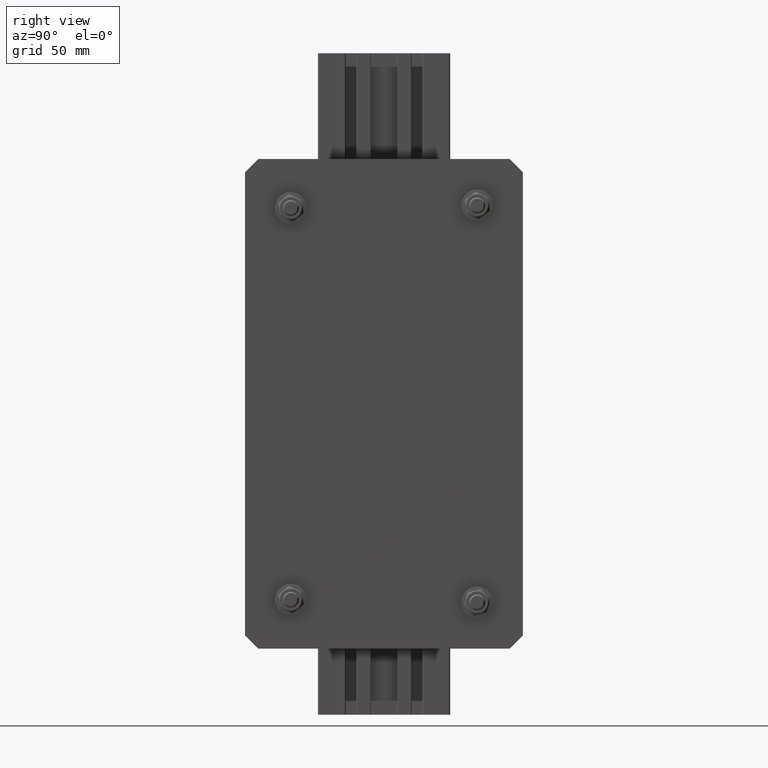
[diagram: clean part render]
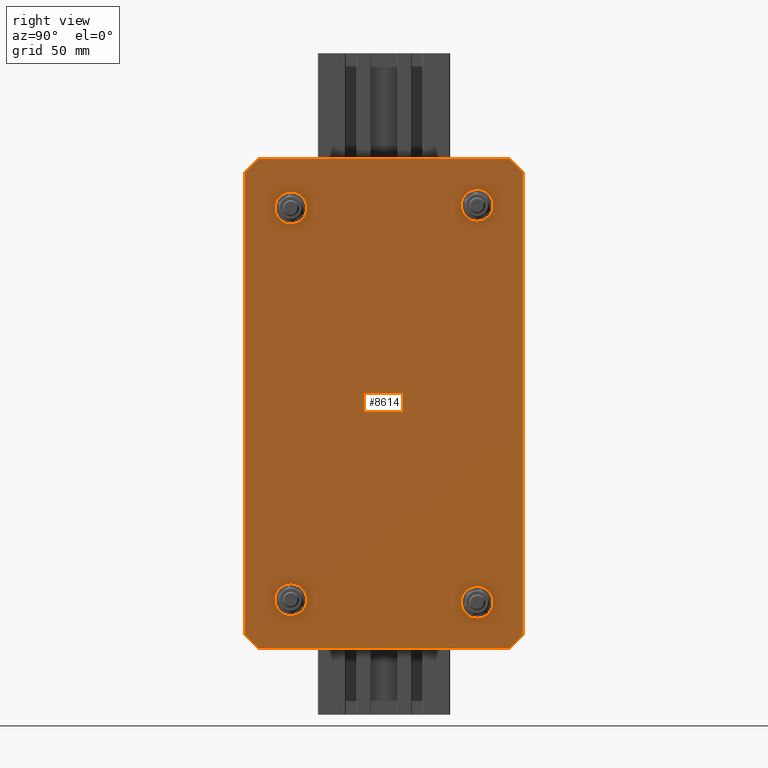
[diagram: same view with one face highlighted and labeled with its STEP entity id]
A machine part, right view. The second image highlights one B-rep face of the part: STEP entity #8614.
In plain terms, the highlighted planar face has unit normal (1, -0, -0).
Its self-contained STEP definition (entity closure, byte-faithful):
#580=FACE_BOUND('',#1534,.T.);
#581=FACE_BOUND('',#1535,.T.);
#582=FACE_BOUND('',#1536,.T.);
#583=FACE_BOUND('',#1537,.T.);
#1030=FACE_OUTER_BOUND('',#1533,.T.);
#1533=EDGE_LOOP('',(#7859,#7860,#7861,#7862,#7863,#7864,#7865,#7866));
#1534=EDGE_LOOP('',(#7867));
#1535=EDGE_LOOP('',(#7868));
#1536=EDGE_LOOP('',(#7869));
#1537=EDGE_LOOP('',(#7870));
#1958=CIRCLE('',#9799,10.);
#1959=CIRCLE('',#9801,10.);
#1960=CIRCLE('',#9803,10.);
#1961=CIRCLE('',#9805,10.);
#2557=LINE('',#16324,#3180);
#2563=LINE('',#16335,#3186);
#2570=LINE('',#16358,#3193);
#2573=LINE('',#16363,#3196);
#2574=LINE('',#16367,#3197);
#2577=LINE('',#16371,#3200);
#2578=LINE('',#16374,#3201);
#2584=LINE('',#16393,#3207);
#3180=VECTOR('',#12187,10.);
#3186=VECTOR('',#12195,10.);
#3193=VECTOR('',#12214,10.);
#3196=VECTOR('',#12219,10.);
#3197=VECTOR('',#12222,10.);
#3200=VECTOR('',#12227,10.);
#3201=VECTOR('',#12230,10.);
#3207=VECTOR('',#12254,10.);
#4037=VERTEX_POINT('',#16322);
#4038=VERTEX_POINT('',#16323);
#4042=VERTEX_POINT('',#16333);
#4052=VERTEX_POINT('',#16357);
#4053=VERTEX_POINT('',#16361);
#4054=VERTEX_POINT('',#16365);
#4055=VERTEX_POINT('',#16366);
#4056=VERTEX_POINT('',#16373);
#4057=VERTEX_POINT('',#16377);
#4058=VERTEX_POINT('',#16381);
#4059=VERTEX_POINT('',#16385);
#4060=VERTEX_POINT('',#16389);
#5295=EDGE_CURVE('',#4037,#4038,#2557,.T.);
#5301=EDGE_CURVE('',#4037,#4042,#2563,.T.);
#5312=EDGE_CURVE('',#4052,#4042,#2570,.T.);
#5315=EDGE_CURVE('',#4052,#4053,#2573,.T.);
#5316=EDGE_CURVE('',#4054,#4055,#2574,.T.);
#5319=EDGE_CURVE('',#4054,#4038,#2577,.T.);
#5320=EDGE_CURVE('',#4056,#4053,#2578,.T.);
#5322=EDGE_CURVE('',#4057,#4057,#1958,.T.);
#5324=EDGE_CURVE('',#4058,#4058,#1959,.T.);
#5326=EDGE_CURVE('',#4059,#4059,#1960,.T.);
#5328=EDGE_CURVE('',#4060,#4060,#1961,.T.);
#5330=EDGE_CURVE('',#4056,#4055,#2584,.T.);
#7859=ORIENTED_EDGE('',*,*,#5295,.F.);
#7860=ORIENTED_EDGE('',*,*,#5301,.T.);
#7861=ORIENTED_EDGE('',*,*,#5312,.F.);
#7862=ORIENTED_EDGE('',*,*,#5315,.T.);
#7863=ORIENTED_EDGE('',*,*,#5320,.F.);
#7864=ORIENTED_EDGE('',*,*,#5330,.T.);
#7865=ORIENTED_EDGE('',*,*,#5316,.F.);
#7866=ORIENTED_EDGE('',*,*,#5319,.T.);
#7867=ORIENTED_EDGE('',*,*,#5322,.T.);
#7868=ORIENTED_EDGE('',*,*,#5324,.T.);
#7869=ORIENTED_EDGE('',*,*,#5326,.T.);
#7870=ORIENTED_EDGE('',*,*,#5328,.T.);
#8167=PLANE('',#9807);
#8614=ADVANCED_FACE('',(#1030,#580,#581,#582,#583),#8167,.T.);
#9799=AXIS2_PLACEMENT_3D('',#16378,#12234,#12235);
#9801=AXIS2_PLACEMENT_3D('',#16382,#12239,#12240);
#9803=AXIS2_PLACEMENT_3D('',#16386,#12244,#12245);
#9805=AXIS2_PLACEMENT_3D('',#16390,#12249,#12250);
#9807=AXIS2_PLACEMENT_3D('',#16394,#12255,#12256);
#12187=DIRECTION('',(0.707106781186548,0.707106781186548,0.));
#12195=DIRECTION('',(0.,-1.,0.));
#12214=DIRECTION('',(-0.707106781186548,0.707106781186548,0.));
#12219=DIRECTION('',(1.,0.,0.));
#12222=DIRECTION('',(0.707106781186548,-0.707106781186548,0.));
#12227=DIRECTION('',(-1.,0.,0.));
#12230=DIRECTION('',(-0.707106781186548,-0.707106781186548,0.));
#12234=DIRECTION('center_axis',(0.,0.,-1.));
#12235=DIRECTION('ref_axis',(1.,0.,0.));
#12239=DIRECTION('center_axis',(0.,0.,-1.));
#12240=DIRECTION('ref_axis',(1.,0.,0.));
#12244=DIRECTION('center_axis',(0.,0.,-1.));
#12245=DIRECTION('ref_axis',(1.,0.,0.));
#12249=DIRECTION('center_axis',(0.,0.,-1.));
#12250=DIRECTION('ref_axis',(1.,0.,0.));
#12254=DIRECTION('',(0.,1.,0.));
#12255=DIRECTION('center_axis',(0.,0.,1.));
#12256=DIRECTION('ref_axis',(1.,0.,0.));
#16322=CARTESIAN_POINT('',(-105.,175.,15.));
#16323=CARTESIAN_POINT('',(-95.,185.,15.));
#16324=CARTESIAN_POINT('',(-120.,160.,15.));
#16333=CARTESIAN_POINT('',(-105.,-175.,15.));
#16335=CARTESIAN_POINT('',(-105.,-185.,15.));
#16357=CARTESIAN_POINT('',(-95.,-185.,15.));
#16358=CARTESIAN_POINT('',(-120.,-160.,15.));
#16361=CARTESIAN_POINT('',(95.,-185.,15.));
#16363=CARTESIAN_POINT('',(105.,-185.,15.));
#16365=CARTESIAN_POINT('',(95.,185.,15.));
#16366=CARTESIAN_POINT('',(105.,175.,15.));
#16367=CARTESIAN_POINT('',(120.,160.,15.));
#16371=CARTESIAN_POINT('',(-105.,185.,15.));
#16373=CARTESIAN_POINT('',(105.,-175.,15.));
#16374=CARTESIAN_POINT('',(120.,-160.,15.));
#16377=CARTESIAN_POINT('',(-80.4,-150.,15.));
#16378=CARTESIAN_POINT('Origin',(-70.4,-150.,15.));
#16381=CARTESIAN_POINT('',(-80.4,150.,15.));
#16382=CARTESIAN_POINT('Origin',(-70.4,150.,15.));
#16385=CARTESIAN_POINT('',(60.4,150.,15.));
#16386=CARTESIAN_POINT('Origin',(70.4,150.,15.));
#16389=CARTESIAN_POINT('',(60.4,-150.,15.));
#16390=CARTESIAN_POINT('Origin',(70.4,-150.,15.));
#16393=CARTESIAN_POINT('',(105.,185.,15.));
#16394=CARTESIAN_POINT('Origin',(0.,0.,15.));